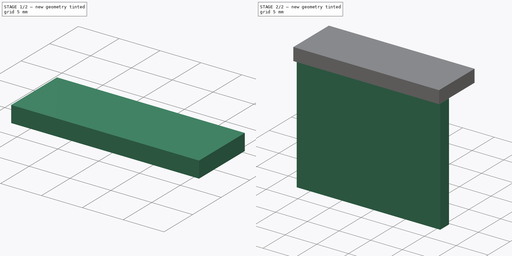
[diagram: build sequence overview — one tinted view per stage of 2, left to right]
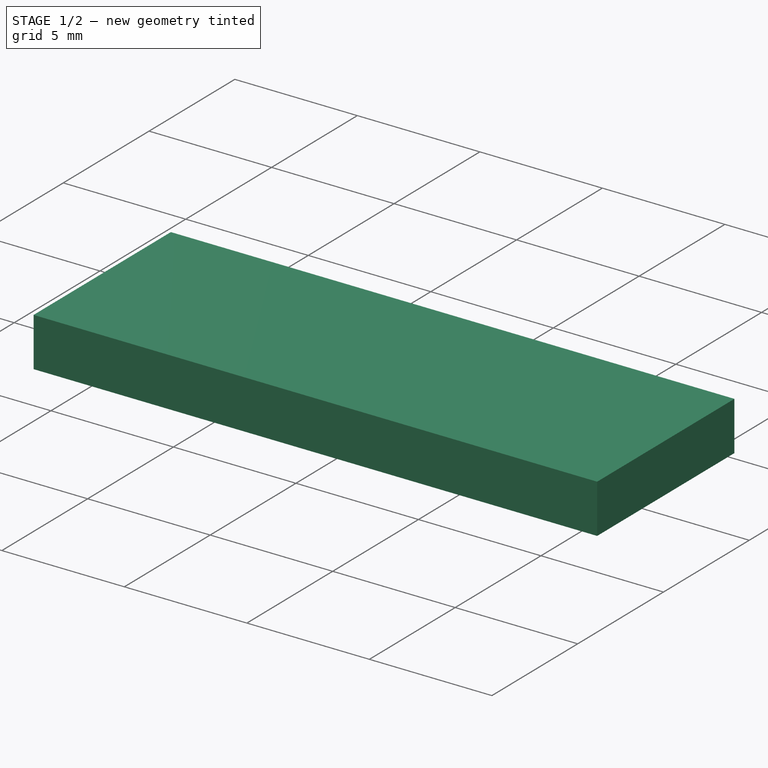
[diagram: stage 1 of 2 — iso view after this stage's code; geometry added in this stage tinted green]
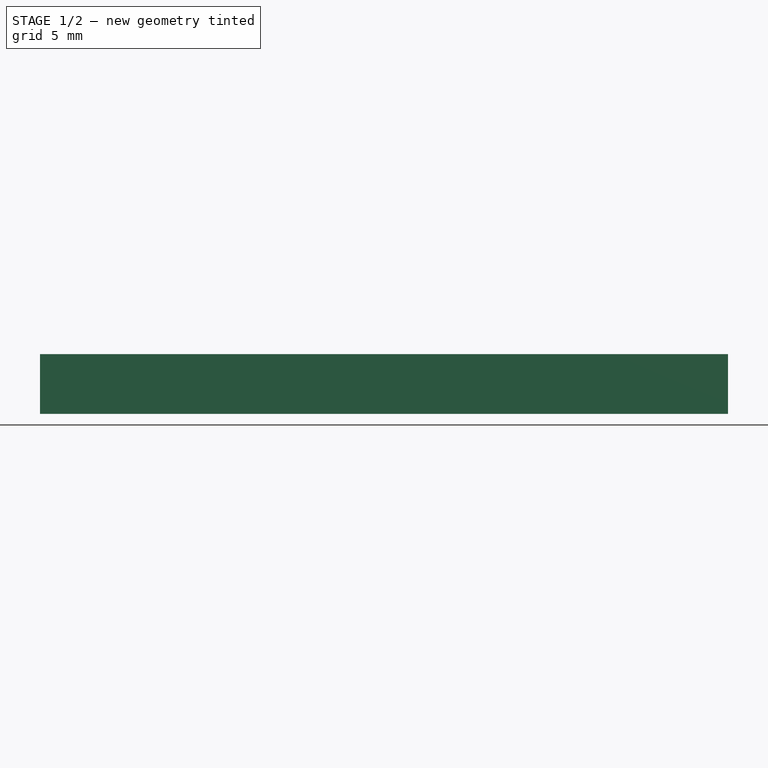
[diagram: stage 1 of 2 — front view after this stage's code; geometry added in this stage tinted green]
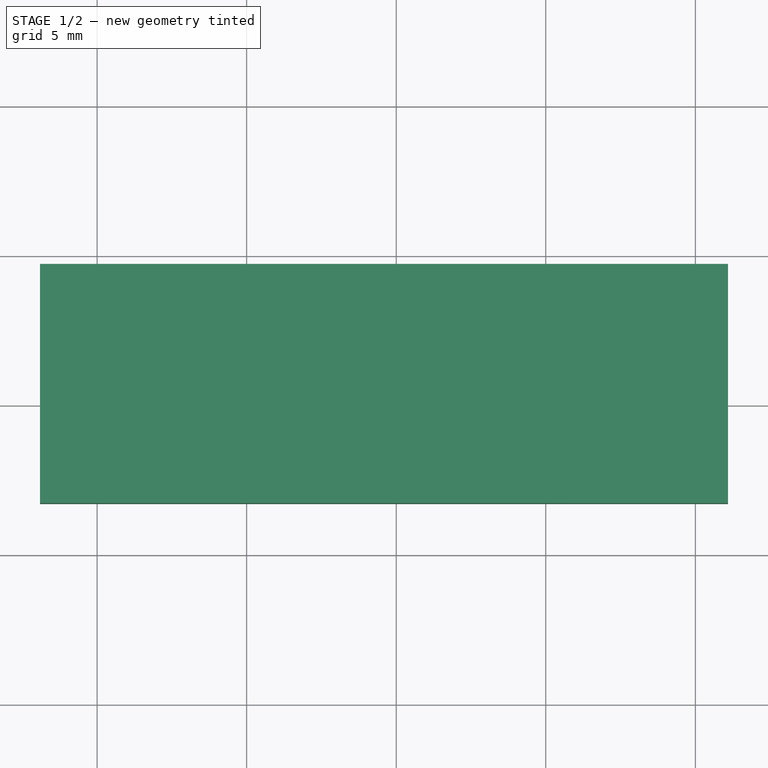
[diagram: stage 1 of 2 — top view after this stage's code; geometry added in this stage tinted green]
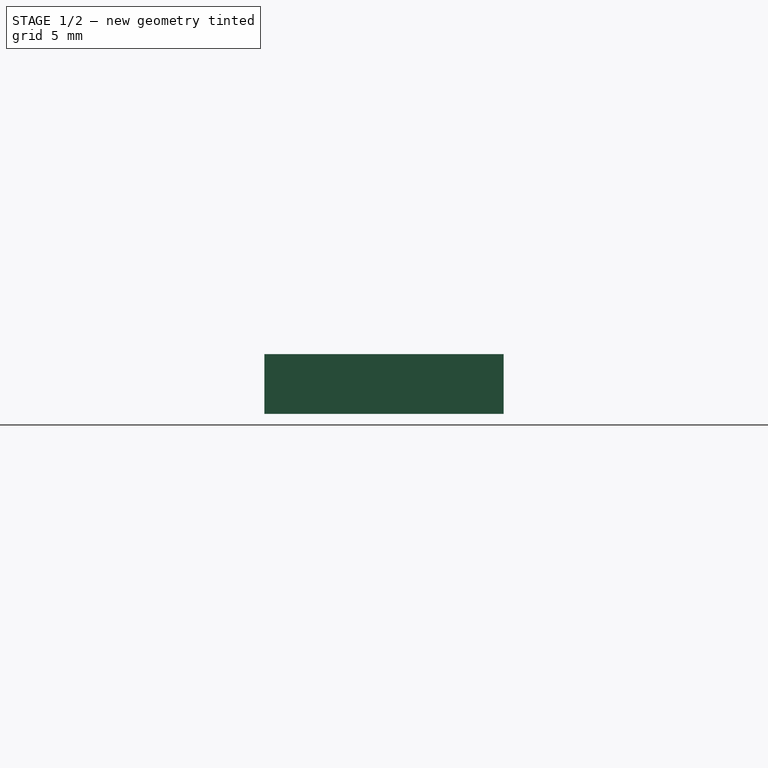
[diagram: stage 1 of 2 — right view after this stage's code; geometry added in this stage tinted green]
FCSTD DOCUMENT  (FreeCAD 0.14R3700 (Git))
Label: sensor_encoder
License: CC-BY 3.0
LicenseURL: http://creativecommons.org/licenses/by/3.0/
objects: Sketcher::SketchObject×2, PartDesign::Pad×2
note: 6 computed .brp shape members not serialized (recipe doc carries the construction recipe); baked Part::Feature solids carry a one-line shape summary decoded from their .brp

FEATURE [Sketcher::SketchObject] Sketch
  Placement = pos=(0,0,0) rot=(-1,0,0;3.14159rad)
  sketch-geometry (4):
    g0: LineSegment StartX=-11.9086 StartY=8.28284 StartZ=0 EndX=11.0914 EndY=8.28284 EndZ=0
    g1: LineSegment StartX=11.0914 StartY=8.28284 StartZ=0 EndX=11.0914 EndY=0.282843 EndZ=0
    g2: LineSegment StartX=11.0914 StartY=0.282843 StartZ=0 EndX=-11.9086 EndY=0.282843 EndZ=0
    g3: LineSegment StartX=-11.9086 StartY=0.282843 StartZ=0 EndX=-11.9086 EndY=8.28284 EndZ=0
  constraints (10):
    c: Coincident(g0,g1)
    c: Coincident(g1,g2)
    c: Coincident(g2,g3)
    c: Coincident(g3,g0)
    c: Horizontal(g0)
    c: Horizontal(g2)
    c: Vertical(g1)
    c: Vertical(g3)
    c: DistanceX(g0) = 23
    c: DistanceY(g1) = -8
FEATURE [PartDesign::Pad] Pad
  Length = 2
  Length2 = 10
  Placement = pos=(0,0,0) rot=(-1,0,0;3.14159rad)
  Sketch = -> Sketch
  Type = 0
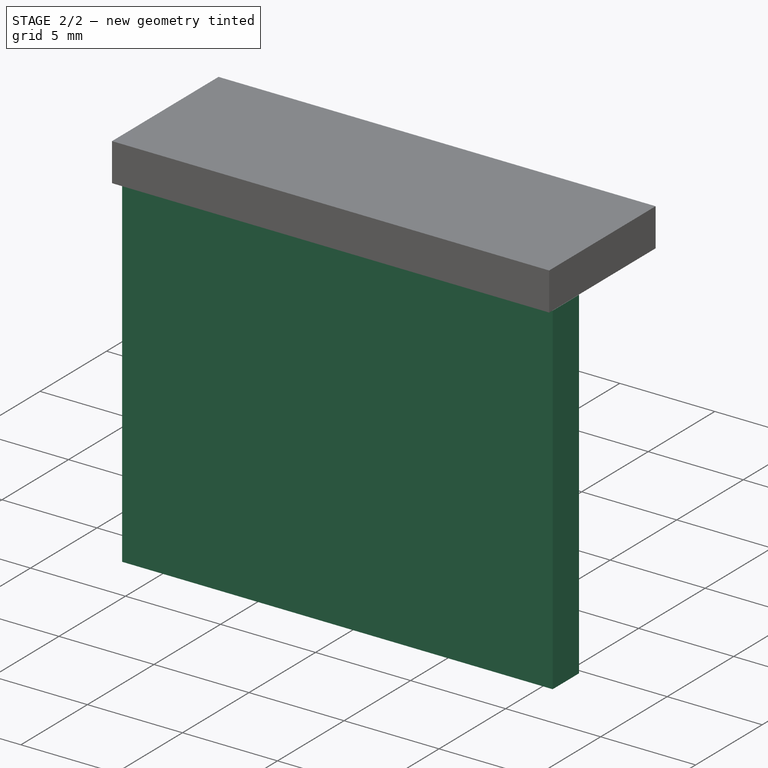
[diagram: stage 2 of 2 — iso view after this stage's code; geometry added in this stage tinted green]
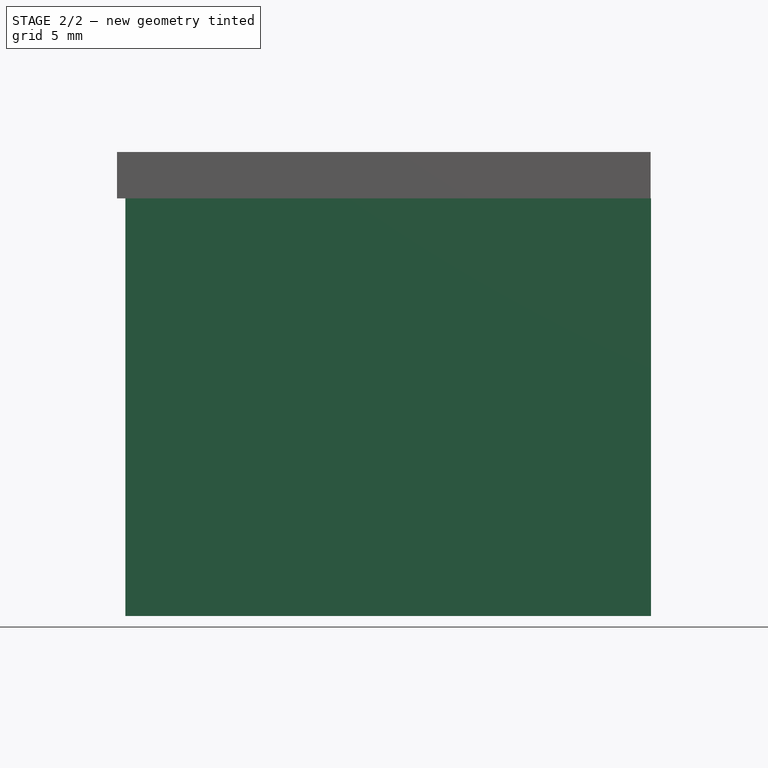
[diagram: stage 2 of 2 — front view after this stage's code; geometry added in this stage tinted green]
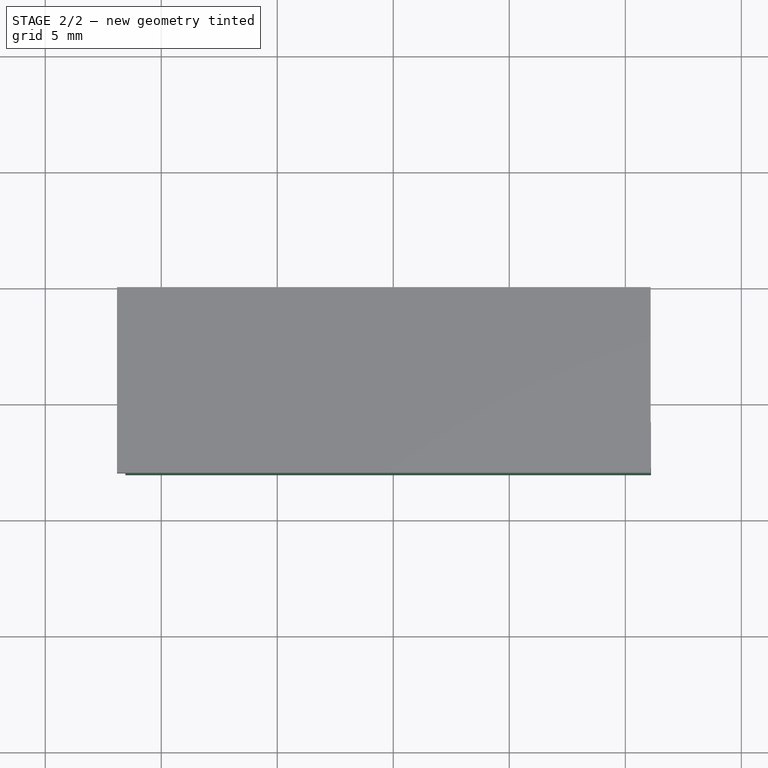
[diagram: stage 2 of 2 — top view after this stage's code; geometry added in this stage tinted green]
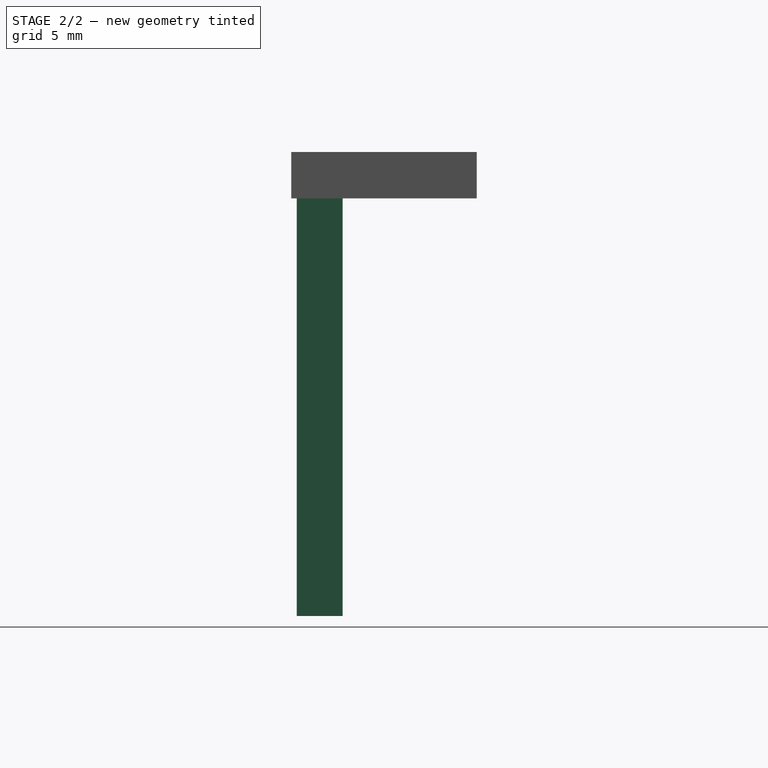
[diagram: stage 2 of 2 — right view after this stage's code; geometry added in this stage tinted green]
FEATURE [Sketcher::SketchObject] Sketch001
  Placement = pos=(0,0,-2) rot=(1,0,0;3.14159rad)
  Support = -> Pad [Face6]
  sketch-geometry (4):
    g0: LineSegment StartX=-11.544 StartY=8.04328 StartZ=0 EndX=11.109 EndY=8.04328 EndZ=0
    g1: LineSegment StartX=11.109 StartY=8.04328 StartZ=0 EndX=11.109 EndY=6.06684 EndZ=0
    g2: LineSegment StartX=11.109 StartY=6.06684 StartZ=0 EndX=-11.544 EndY=6.06684 EndZ=0
    g3: LineSegment StartX=-11.544 StartY=6.06684 StartZ=0 EndX=-11.544 EndY=8.04328 EndZ=0
  constraints (8):
    c: Coincident(g0,g1)
    c: Coincident(g1,g2)
    c: Coincident(g2,g3)
    c: Coincident(g3,g0)
    c: Horizontal(g0)
    c: Horizontal(g2)
    c: Vertical(g1)
    c: Vertical(g3)
FEATURE [PartDesign::Pad] Pad001
  Length = 18
  Length2 = 10
  Placement = pos=(0,0,0) rot=(-1,0,0;3.14159rad)
  Sketch = -> Sketch001
  Type = 0
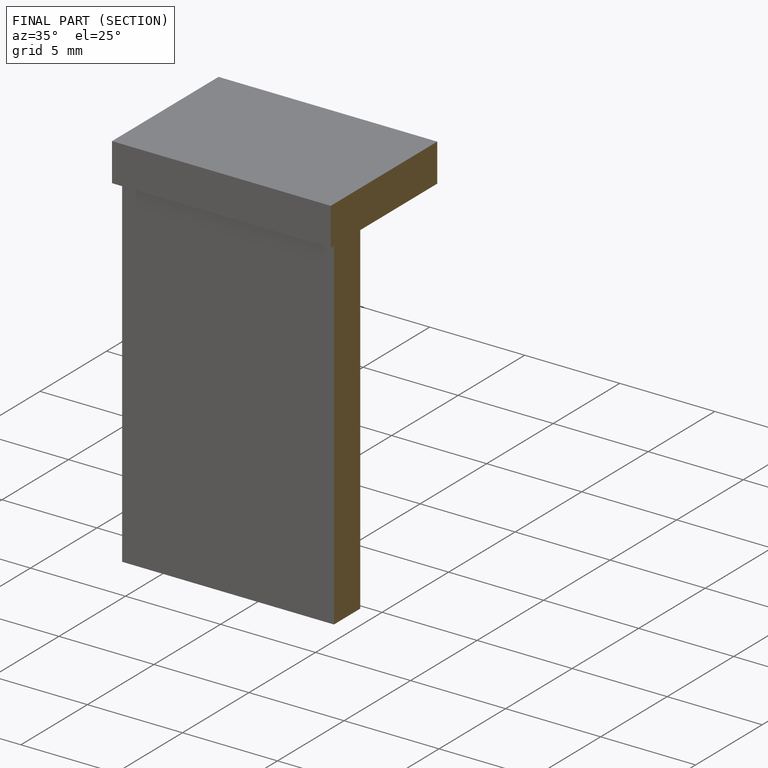
[diagram: finished part — half-section view (interior)]
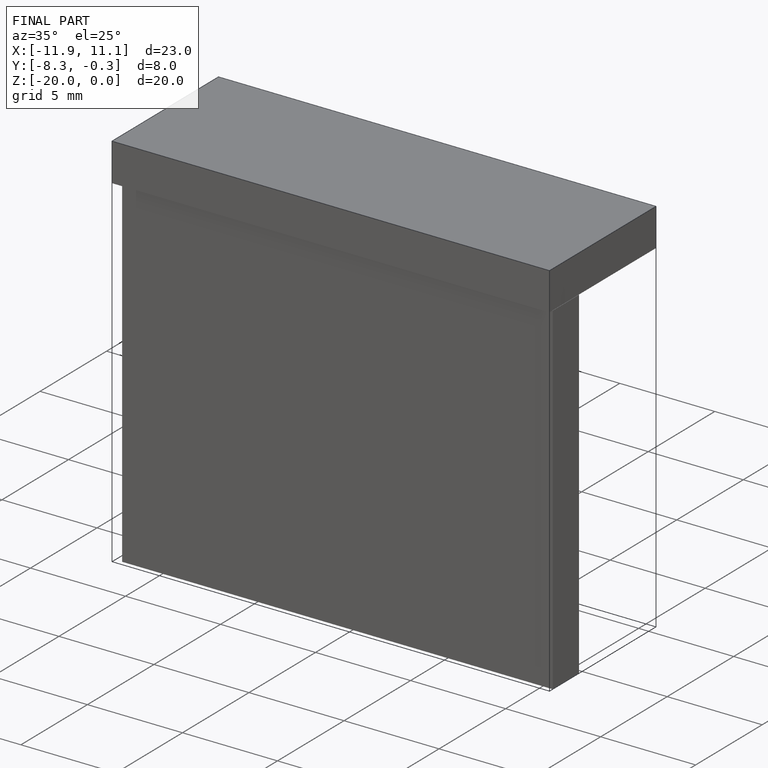
[diagram: finished part — iso view with bounding-box wireframe]
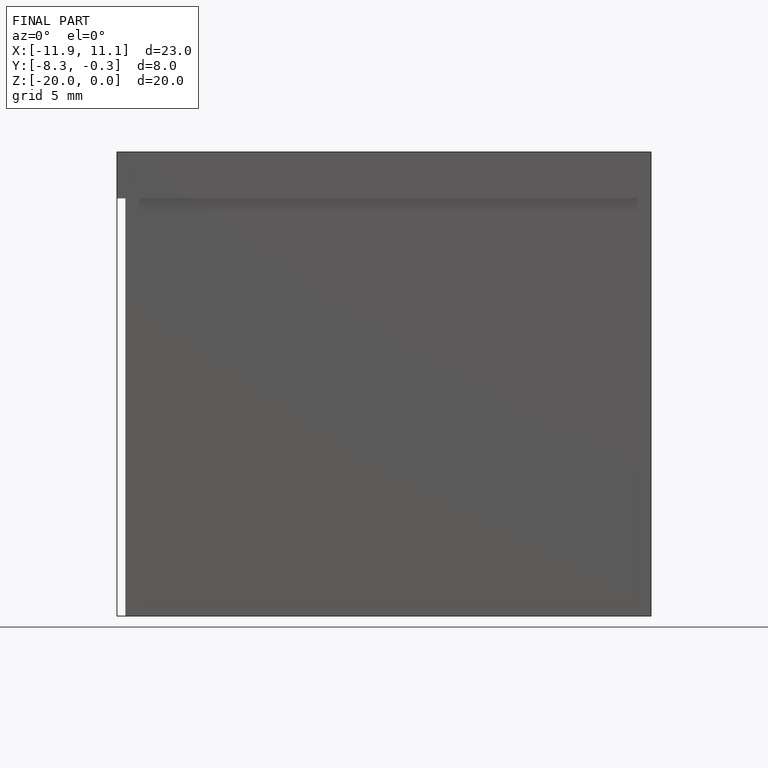
[diagram: finished part — front view with bounding-box wireframe]
